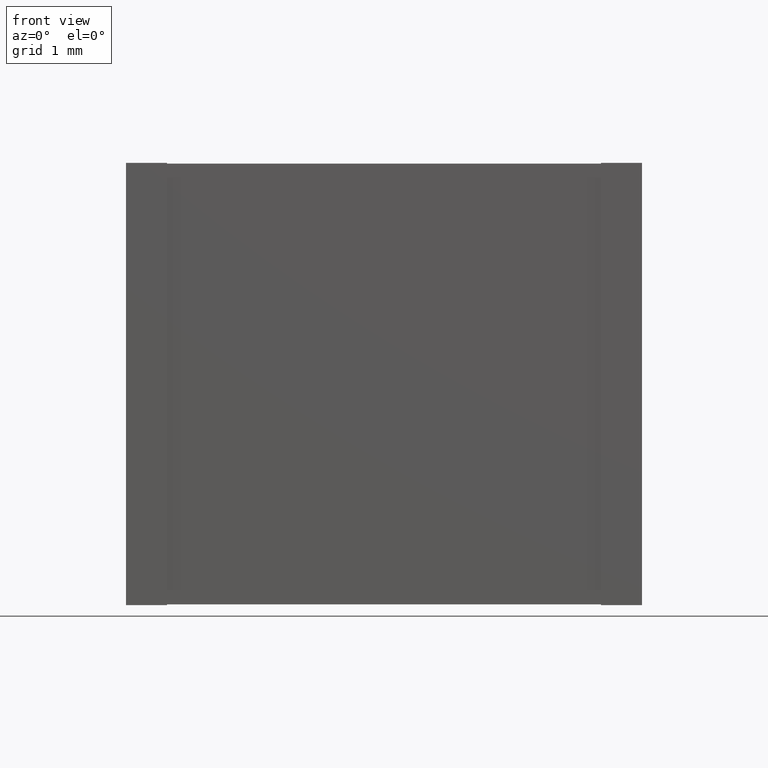
[diagram: clean part render]
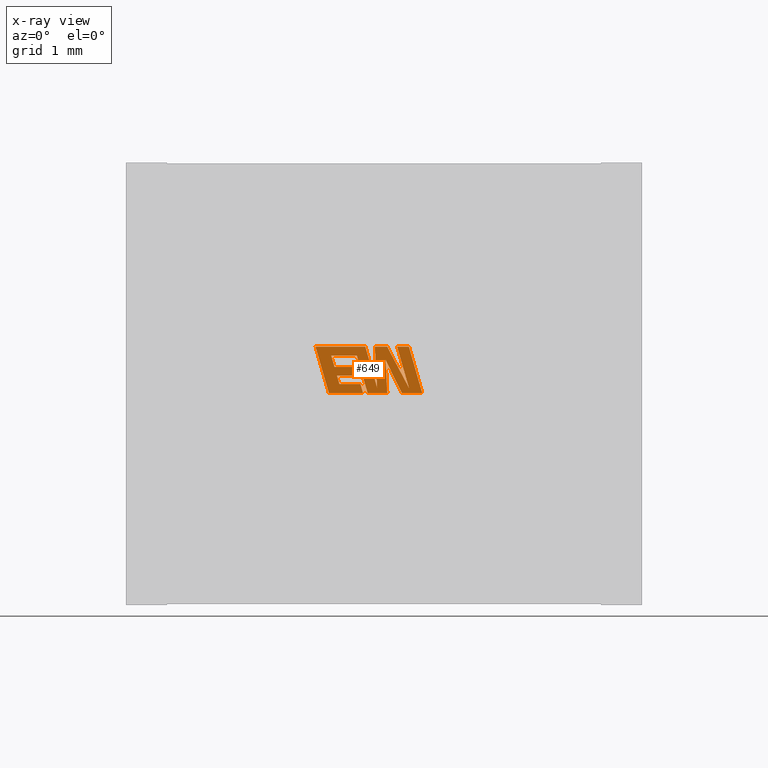
[diagram: x-ray — body ghosted, one internal face saturated and labeled with its STEP entity id]
A machine part, front view, then the same camera in x-ray: the body is ghosted and one INTERNAL B-rep face — a face not visible from any outside direction — is saturated and labeled: STEP entity #649.
In plain terms, the highlighted planar face has unit normal (0, -1, 0).
Its self-contained STEP definition (entity closure, byte-faithful):
#1 = ORIENTED_EDGE ( 'NONE', *, *, #994, .F. ) ;
#9 = LINE ( 'NONE', #1555, #2463 ) ;
#12 = VERTEX_POINT ( 'NONE', #1788 ) ;
#21 = EDGE_CURVE ( 'NONE', #821, #1687, #1565, .T. ) ;
#28 = EDGE_CURVE ( 'NONE', #1629, #73, #630, .T. ) ;
#41 = CARTESIAN_POINT ( 'NONE',  ( 2.882960520678099936, 3.279999999999999805, -2.799302340902837027 ) ) ;
#73 = VERTEX_POINT ( 'NONE', #771 ) ;
#77 = ORIENTED_EDGE ( 'NONE', *, *, #28, .F. ) ;
#121 = VERTEX_POINT ( 'NONE', #793 ) ;
#132 = DIRECTION ( 'NONE',  ( 0.000000000000000000, -3.441911658684139309E-17, -1.000000000000000000 ) ) ;
#135 = EDGE_CURVE ( 'NONE', #1022, #1717, #1397, .T. ) ;
#144 = ORIENTED_EDGE ( 'NONE', *, *, #697, .F. ) ;
#174 = CARTESIAN_POINT ( 'NONE',  ( 3.444849766975562666, 3.279999999999999805, -2.739779651258532844 ) ) ;
#211 = VECTOR ( 'NONE', #2368, 1000.000000000000000 ) ;
#219 = DIRECTION ( 'NONE',  ( 1.000000000000000000, 0.000000000000000000, 0.000000000000000000 ) ) ;
#244 = ORIENTED_EDGE ( 'NONE', *, *, #426, .F. ) ;
#247 = VECTOR ( 'NONE', #286, 999.9999999999998863 ) ;
#259 = ORIENTED_EDGE ( 'NONE', *, *, #1898, .F. ) ;
#260 = CARTESIAN_POINT ( 'NONE',  ( 3.605588664487398010, 3.279999999999999805, -2.799302340902837027 ) ) ;
#275 = LINE ( 'NONE', #1065, #1539 ) ;
#286 = DIRECTION ( 'NONE',  ( 0.4668459304955114297, -3.043815566671013967E-17, -0.8843386665637662514 ) ) ;
#330 = VECTOR ( 'NONE', #452, 1000.000000000000114 ) ;
#351 = ORIENTED_EDGE ( 'NONE', *, *, #1283, .F. ) ;
#377 = CARTESIAN_POINT ( 'NONE',  ( 2.911627603298491795, 3.279999999999999805, -2.234780000000000655 ) ) ;
#392 = VERTEX_POINT ( 'NONE', #696 ) ;
#418 = CARTESIAN_POINT ( 'NONE',  ( 2.465910333674405486, 3.279999999999999805, -2.799302340902837027 ) ) ;
#426 = EDGE_CURVE ( 'NONE', #1717, #1585, #2431, .T. ) ;
#439 = DIRECTION ( 'NONE',  ( -0.2760118818968598786, 3.308207927120758741E-17, 0.9611542233438677973 ) ) ;
#442 = DIRECTION ( 'NONE',  ( -0.2765379750249947199, 3.307687398141011720E-17, 0.9610029908221281447 ) ) ;
#447 = ORIENTED_EDGE ( 'NONE', *, *, #135, .F. ) ;
#451 = ORIENTED_EDGE ( 'NONE', *, *, #2239, .F. ) ;
#452 = DIRECTION ( 'NONE',  ( 0.2759782365590725539, -3.308241180107446086E-17, -0.9611638845408958520 ) ) ;
#484 = DIRECTION ( 'NONE',  ( 1.000000000000000000, 0.000000000000000000, 0.000000000000000000 ) ) ;
#485 = VECTOR ( 'NONE', #908, 1000.000000000000114 ) ;
#498 = ORIENTED_EDGE ( 'NONE', *, *, #21, .F. ) ;
#503 = CARTESIAN_POINT ( 'NONE',  ( 2.534911475668363945, 3.279999999999999805, -2.482486530050019180 ) ) ;
#505 = EDGE_CURVE ( 'NONE', #1793, #2211, #9, .T. ) ;
#578 = CARTESIAN_POINT ( 'NONE',  ( 2.494934446460498556, 3.279999999999999805, -2.342180717797249567 ) ) ;
#627 = VERTEX_POINT ( 'NONE', #2169 ) ;
#630 = LINE ( 'NONE', #2332, #1277 ) ;
#649 = ADVANCED_FACE ( 'NONE', ( #2442 ), #1670, .T. ) ;
#650 = DIRECTION ( 'NONE',  ( 0.2746459304916935573, -3.309554423921428965E-17, -0.9615454294334468965 ) ) ;
#671 = VERTEX_POINT ( 'NONE', #503 ) ;
#693 = CARTESIAN_POINT ( 'NONE',  ( -0.1056363204299355096, 3.279999999999999805, -0.8798310811423376565 ) ) ;
#696 = CARTESIAN_POINT ( 'NONE',  ( 2.882960520678099936, 3.279999999999999805, -2.799302340902837027 ) ) ;
#697 = EDGE_CURVE ( 'NONE', #801, #121, #2416, .T. ) ;
#760 = VERTEX_POINT ( 'NONE', #2502 ) ;
#762 = CARTESIAN_POINT ( 'NONE',  ( 2.595239198662731450, 3.279999999999999805, -2.691848411947124209 ) ) ;
#771 = CARTESIAN_POINT ( 'NONE',  ( 3.178258424760743495, 3.279999999999999805, -2.234780000000000655 ) ) ;
#778 = ORIENTED_EDGE ( 'NONE', *, *, #505, .F. ) ;
#793 = CARTESIAN_POINT ( 'NONE',  ( 3.157968404321347844, 3.279999999999999805, -2.396000327339683711 ) ) ;
#796 = CARTESIAN_POINT ( 'NONE',  ( 2.852441345954355612, 3.279999999999999805, -2.691848411947124209 ) ) ;
#801 = VERTEX_POINT ( 'NONE', #1309 ) ;
#821 = VERTEX_POINT ( 'NONE', #2179 ) ;
#833 = ORIENTED_EDGE ( 'NONE', *, *, #1660, .F. ) ;
#837 = CARTESIAN_POINT ( 'NONE',  ( 3.444849766975562666, 3.279999999999999805, -2.739779651258532844 ) ) ;
#861 = VECTOR ( 'NONE', #1020, 1000.000000000000114 ) ;
#896 = ORIENTED_EDGE ( 'NONE', *, *, #2225, .F. ) ;
#908 = DIRECTION ( 'NONE',  ( 0.2740217765954069962, -3.310167283237649561E-17, -0.9617234872620594732 ) ) ;
#913 = LINE ( 'NONE', #1103, #247 ) ;
#919 = CARTESIAN_POINT ( 'NONE',  ( 2.777176735533703589, 3.279999999999999805, -2.482486530050019180 ) ) ;
#937 = DIRECTION ( 'NONE',  ( 0.2793947940878242497, -3.304842040712753556E-17, -0.9601763114327609427 ) ) ;
#953 = DIRECTION ( 'NONE',  ( -1.000000000000000000, 0.000000000000000000, -0.000000000000000000 ) ) ;
#967 = ORIENTED_EDGE ( 'NONE', *, *, #1063, .F. ) ;
#994 = EDGE_CURVE ( 'NONE', #12, #2301, #1342, .T. ) ;
#1020 = DIRECTION ( 'NONE',  ( 0.2732148821746245293, -3.310957342322719511E-17, -0.9619530280415493628 ) ) ;
#1022 = VERTEX_POINT ( 'NONE', #174 ) ;
#1031 = LINE ( 'NONE', #1772, #1536 ) ;
#1035 = VERTEX_POINT ( 'NONE', #919 ) ;
#1044 = LINE ( 'NONE', #260, #1418 ) ;
#1053 = DIRECTION ( 'NONE',  ( 0.000000000000000000, -1.000000000000000000, 3.441911658684139309E-17 ) ) ;
#1058 = VECTOR ( 'NONE', #1755, 1000.000000000000227 ) ;
#1063 = EDGE_CURVE ( 'NONE', #2418, #671, #2474, .T. ) ;
#1065 = CARTESIAN_POINT ( 'NONE',  ( 3.443284328992062271, 3.279999999999999805, -2.234780000000000655 ) ) ;
#1076 = LINE ( 'NONE', #2383, #330 ) ;
#1103 = CARTESIAN_POINT ( 'NONE',  ( 3.178258424760743495, 3.279999999999999805, -2.234780000000000655 ) ) ;
#1109 = DIRECTION ( 'NONE',  ( 1.000000000000000000, 0.000000000000000000, 0.000000000000000000 ) ) ;
#1134 = VECTOR ( 'NONE', #1109, 1000.000000000000000 ) ;
#1237 = LINE ( 'NONE', #1434, #2352 ) ;
#1244 = EDGE_CURVE ( 'NONE', #73, #1022, #913, .T. ) ;
#1245 = DIRECTION ( 'NONE',  ( -1.000000000000000000, 0.000000000000000000, -0.000000000000000000 ) ) ;
#1253 = DIRECTION ( 'NONE',  ( -0.4443210308329498259, 3.083497261614970257E-17, 0.8958676361826811707 ) ) ;
#1254 = CARTESIAN_POINT ( 'NONE',  ( 3.443284328992062271, 3.279999999999999805, -2.234780000000000655 ) ) ;
#1258 = VECTOR ( 'NONE', #2111, 1000.000000000000227 ) ;
#1277 = VECTOR ( 'NONE', #219, 1000.000000000000000 ) ;
#1283 = EDGE_CURVE ( 'NONE', #671, #1035, #1293, .T. ) ;
#1290 = CARTESIAN_POINT ( 'NONE',  ( 3.299830475881777581, 3.279999999999999805, -2.234780000000000655 ) ) ;
#1293 = LINE ( 'NONE', #2210, #1740 ) ;
#1309 = CARTESIAN_POINT ( 'NONE',  ( 3.357993005240007989, 3.279999999999999805, -2.799302340902837027 ) ) ;
#1329 = EDGE_LOOP ( 'NONE', ( #896, #2038, #244, #447, #2495, #77, #2057, #259, #498, #2027, #1401, #451, #2086, #1, #2444, #2113, #351, #967, #2247, #833, #778, #2174, #144 ) ) ;
#1342 = LINE ( 'NONE', #1482, #1411 ) ;
#1355 = LINE ( 'NONE', #41, #211 ) ;
#1397 = LINE ( 'NONE', #837, #1970 ) ;
#1401 = ORIENTED_EDGE ( 'NONE', *, *, #1824, .F. ) ;
#1411 = VECTOR ( 'NONE', #937, 1000.000000000000114 ) ;
#1418 = VECTOR ( 'NONE', #1599, 1000.000000000000000 ) ;
#1421 = VERTEX_POINT ( 'NONE', #2297 ) ;
#1424 = DIRECTION ( 'NONE',  ( 0.2763139702539109677, -3.307909164944355573E-17, -0.9610674221107073922 ) ) ;
#1431 = EDGE_CURVE ( 'NONE', #1838, #12, #2323, .T. ) ;
#1434 = CARTESIAN_POINT ( 'NONE',  ( 3.157968404321347844, 3.279999999999999805, -2.396000327339683711 ) ) ;
#1458 = VECTOR ( 'NONE', #650, 1000.000000000000114 ) ;
#1482 = CARTESIAN_POINT ( 'NONE',  ( 2.564685694158695295, 3.279999999999999805, -2.586847345796951636 ) ) ;
#1511 = EDGE_CURVE ( 'NONE', #2295, #821, #1031, .T. ) ;
#1536 = VECTOR ( 'NONE', #442, 1000.000000000000114 ) ;
#1539 = VECTOR ( 'NONE', #1424, 1000.000000000000114 ) ;
#1555 = CARTESIAN_POINT ( 'NONE',  ( 3.179678319300326628, 3.279999999999999805, -2.799302340902837027 ) ) ;
#1565 = LINE ( 'NONE', #1952, #2380 ) ;
#1569 = CARTESIAN_POINT ( 'NONE',  ( 2.777176735533703589, 3.279999999999999805, -2.482486530050019180 ) ) ;
#1585 = VERTEX_POINT ( 'NONE', #1254 ) ;
#1592 = CARTESIAN_POINT ( 'NONE',  ( 3.179678319300326628, 3.279999999999999805, -2.799302340902837027 ) ) ;
#1599 = DIRECTION ( 'NONE',  ( -1.000000000000000000, 0.000000000000000000, -0.000000000000000000 ) ) ;
#1629 = VERTEX_POINT ( 'NONE', #1931 ) ;
#1660 = EDGE_CURVE ( 'NONE', #2211, #627, #1711, .T. ) ;
#1661 = LINE ( 'NONE', #2058, #1987 ) ;
#1669 = EDGE_CURVE ( 'NONE', #2301, #760, #2508, .T. ) ;
#1670 = PLANE ( 'NONE',  #1894 ) ;
#1687 = VERTEX_POINT ( 'NONE', #377 ) ;
#1691 = VECTOR ( 'NONE', #1253, 1000.000000000000114 ) ;
#1711 = LINE ( 'NONE', #2300, #1258 ) ;
#1717 = VERTEX_POINT ( 'NONE', #2478 ) ;
#1736 = EDGE_CURVE ( 'NONE', #2082, #1629, #1960, .T. ) ;
#1740 = VECTOR ( 'NONE', #2073, 1000.000000000000000 ) ;
#1755 = DIRECTION ( 'NONE',  ( -0.05596501978069230027, 3.436517254187852837E-17, 0.9984327301130240251 ) ) ;
#1768 = CARTESIAN_POINT ( 'NONE',  ( 2.806985283804352083, 3.279999999999999805, -2.586847345796951636 ) ) ;
#1772 = CARTESIAN_POINT ( 'NONE',  ( 2.465910333674405486, 3.279999999999999805, -2.799302340902837027 ) ) ;
#1788 = CARTESIAN_POINT ( 'NONE',  ( 2.564685694158695295, 3.279999999999999805, -2.586847345796951636 ) ) ;
#1793 = VERTEX_POINT ( 'NONE', #1592 ) ;
#1812 = LINE ( 'NONE', #796, #861 ) ;
#1824 = EDGE_CURVE ( 'NONE', #392, #2295, #1355, .T. ) ;
#1838 = VERTEX_POINT ( 'NONE', #1768 ) ;
#1874 = CARTESIAN_POINT ( 'NONE',  ( 2.595239198662731450, 3.279999999999999805, -2.691848411947124209 ) ) ;
#1894 = AXIS2_PLACEMENT_3D ( 'NONE', #693, #1053, #132 ) ;
#1898 = EDGE_CURVE ( 'NONE', #1687, #2082, #1076, .T. ) ;
#1927 = CARTESIAN_POINT ( 'NONE',  ( 2.494934446460498556, 3.279999999999999805, -2.342180717797249567 ) ) ;
#1931 = CARTESIAN_POINT ( 'NONE',  ( 3.027761817213516782, 3.279999999999999805, -2.234780000000000655 ) ) ;
#1940 = DIRECTION ( 'NONE',  ( -1.000000000000000000, 0.000000000000000000, -0.000000000000000000 ) ) ;
#1952 = CARTESIAN_POINT ( 'NONE',  ( 2.811144336240833930, 3.279999999999999805, -2.234780000000000655 ) ) ;
#1960 = LINE ( 'NONE', #1974, #1058 ) ;
#1970 = VECTOR ( 'NONE', #439, 1000.000000000000114 ) ;
#1971 = EDGE_CURVE ( 'NONE', #1585, #1421, #275, .T. ) ;
#1974 = CARTESIAN_POINT ( 'NONE',  ( 3.055932834961383016, 3.279999999999999805, -2.737359401745650178 ) ) ;
#1987 = VECTOR ( 'NONE', #1245, 1000.000000000000000 ) ;
#2007 = EDGE_CURVE ( 'NONE', #121, #1793, #1237, .T. ) ;
#2027 = ORIENTED_EDGE ( 'NONE', *, *, #1511, .F. ) ;
#2038 = ORIENTED_EDGE ( 'NONE', *, *, #1971, .F. ) ;
#2057 = ORIENTED_EDGE ( 'NONE', *, *, #1736, .F. ) ;
#2058 = CARTESIAN_POINT ( 'NONE',  ( 2.807874425113532801, 3.279999999999999805, -2.342180717797249567 ) ) ;
#2073 = DIRECTION ( 'NONE',  ( 1.000000000000000000, 0.000000000000000000, 0.000000000000000000 ) ) ;
#2078 = LINE ( 'NONE', #1569, #1458 ) ;
#2082 = VERTEX_POINT ( 'NONE', #2257 ) ;
#2086 = ORIENTED_EDGE ( 'NONE', *, *, #1669, .F. ) ;
#2111 = DIRECTION ( 'NONE',  ( -0.2762517575166432149, 3.307970721609225422E-17, 0.9610853065513829119 ) ) ;
#2113 = ORIENTED_EDGE ( 'NONE', *, *, #2141, .F. ) ;
#2141 = EDGE_CURVE ( 'NONE', #1035, #1838, #2078, .T. ) ;
#2142 = CARTESIAN_POINT ( 'NONE',  ( 2.806985283804352083, 3.279999999999999805, -2.586847345796951636 ) ) ;
#2157 = DIRECTION ( 'NONE',  ( 1.000000000000000000, 1.299823216832254006E-31, 3.776457229960350610E-15 ) ) ;
#2169 = CARTESIAN_POINT ( 'NONE',  ( 2.807874425113532801, 3.279999999999999805, -2.342180717797249567 ) ) ;
#2174 = ORIENTED_EDGE ( 'NONE', *, *, #2007, .F. ) ;
#2179 = CARTESIAN_POINT ( 'NONE',  ( 2.303463529137316446, 3.279999999999999805, -2.234780000000000655 ) ) ;
#2187 = CARTESIAN_POINT ( 'NONE',  ( 2.939268226393155992, 3.279999999999999805, -2.799302340902837027 ) ) ;
#2210 = CARTESIAN_POINT ( 'NONE',  ( 2.534911475668363945, 3.279999999999999805, -2.482486530050019180 ) ) ;
#2211 = VERTEX_POINT ( 'NONE', #2187 ) ;
#2225 = EDGE_CURVE ( 'NONE', #1421, #801, #1044, .T. ) ;
#2226 = CARTESIAN_POINT ( 'NONE',  ( 3.357993005240007989, 3.279999999999999805, -2.799302340902837027 ) ) ;
#2239 = EDGE_CURVE ( 'NONE', #760, #392, #1812, .T. ) ;
#2247 = ORIENTED_EDGE ( 'NONE', *, *, #2402, .F. ) ;
#2257 = CARTESIAN_POINT ( 'NONE',  ( 3.055932834961383016, 3.279999999999999805, -2.737359401745650178 ) ) ;
#2295 = VERTEX_POINT ( 'NONE', #418 ) ;
#2297 = CARTESIAN_POINT ( 'NONE',  ( 3.605588664487398010, 3.279999999999999805, -2.799302340902837027 ) ) ;
#2300 = CARTESIAN_POINT ( 'NONE',  ( 2.939268226393155992, 3.279999999999999805, -2.799302340902837027 ) ) ;
#2301 = VERTEX_POINT ( 'NONE', #1874 ) ;
#2323 = LINE ( 'NONE', #2142, #2395 ) ;
#2332 = CARTESIAN_POINT ( 'NONE',  ( 3.027761817213516782, 3.279999999999999805, -2.234780000000000655 ) ) ;
#2352 = VECTOR ( 'NONE', #2424, 1000.000000000000114 ) ;
#2368 = DIRECTION ( 'NONE',  ( -1.000000000000000000, 0.000000000000000000, -0.000000000000000000 ) ) ;
#2380 = VECTOR ( 'NONE', #2157, 1000.000000000000000 ) ;
#2383 = CARTESIAN_POINT ( 'NONE',  ( 2.911627603298491795, 3.279999999999999805, -2.234780000000000655 ) ) ;
#2395 = VECTOR ( 'NONE', #953, 1000.000000000000000 ) ;
#2402 = EDGE_CURVE ( 'NONE', #627, #2418, #1661, .T. ) ;
#2416 = LINE ( 'NONE', #2226, #1691 ) ;
#2418 = VERTEX_POINT ( 'NONE', #1927 ) ;
#2424 = DIRECTION ( 'NONE',  ( 0.05375259206908573895, -3.436935633223077144E-17, -0.9985542843760946141 ) ) ;
#2429 = VECTOR ( 'NONE', #484, 1000.000000000000000 ) ;
#2431 = LINE ( 'NONE', #1290, #2429 ) ;
#2442 = FACE_OUTER_BOUND ( 'NONE', #1329, .T. ) ;
#2444 = ORIENTED_EDGE ( 'NONE', *, *, #1431, .F. ) ;
#2463 = VECTOR ( 'NONE', #1940, 1000.000000000000000 ) ;
#2474 = LINE ( 'NONE', #578, #485 ) ;
#2478 = CARTESIAN_POINT ( 'NONE',  ( 3.299830475881777581, 3.279999999999999805, -2.234780000000000655 ) ) ;
#2495 = ORIENTED_EDGE ( 'NONE', *, *, #1244, .F. ) ;
#2502 = CARTESIAN_POINT ( 'NONE',  ( 2.852441345954355612, 3.279999999999999805, -2.691848411947124209 ) ) ;
#2508 = LINE ( 'NONE', #762, #1134 ) ;